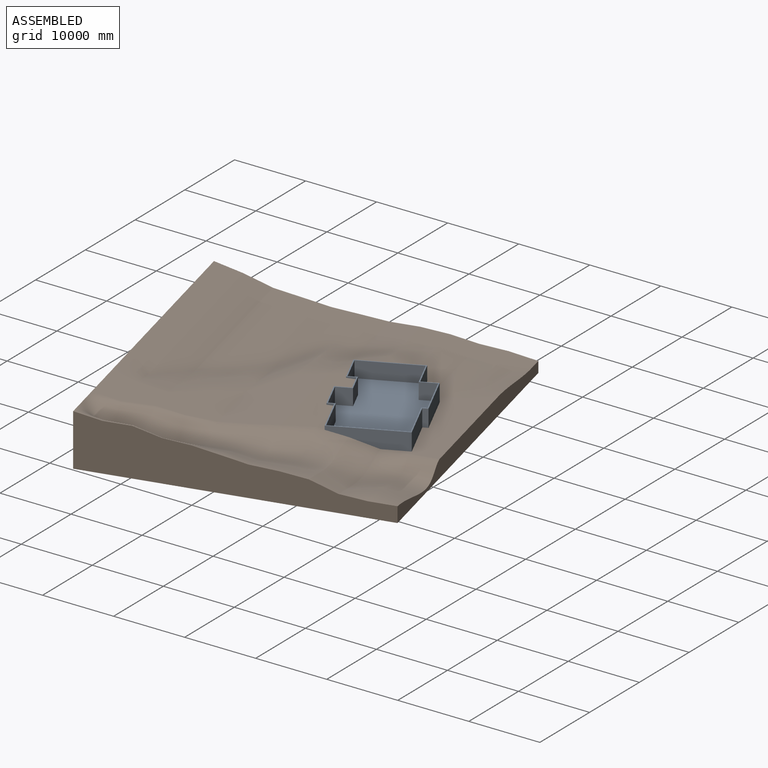
[diagram: assembled view]
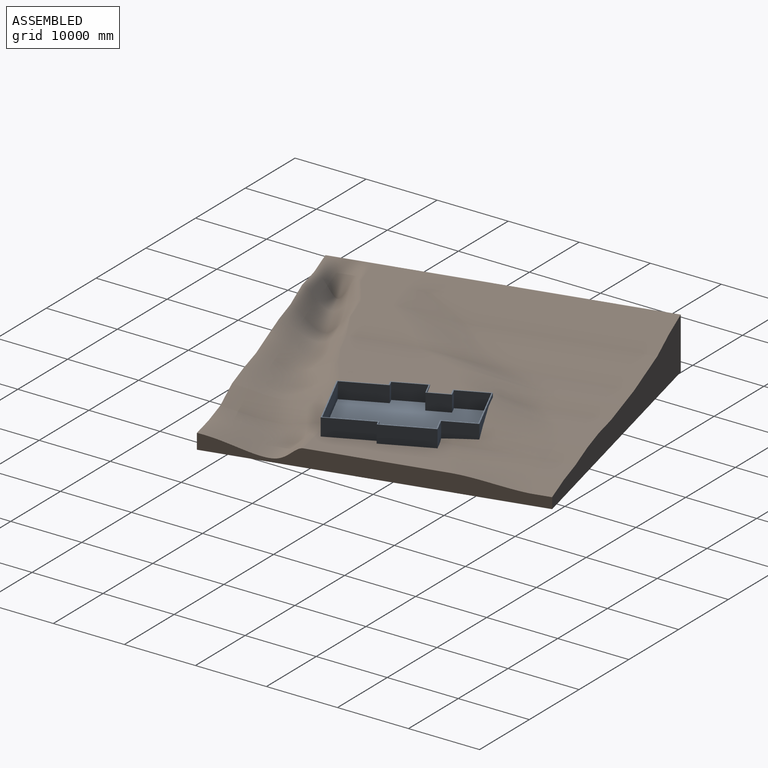
[diagram: assembled view, second angle]
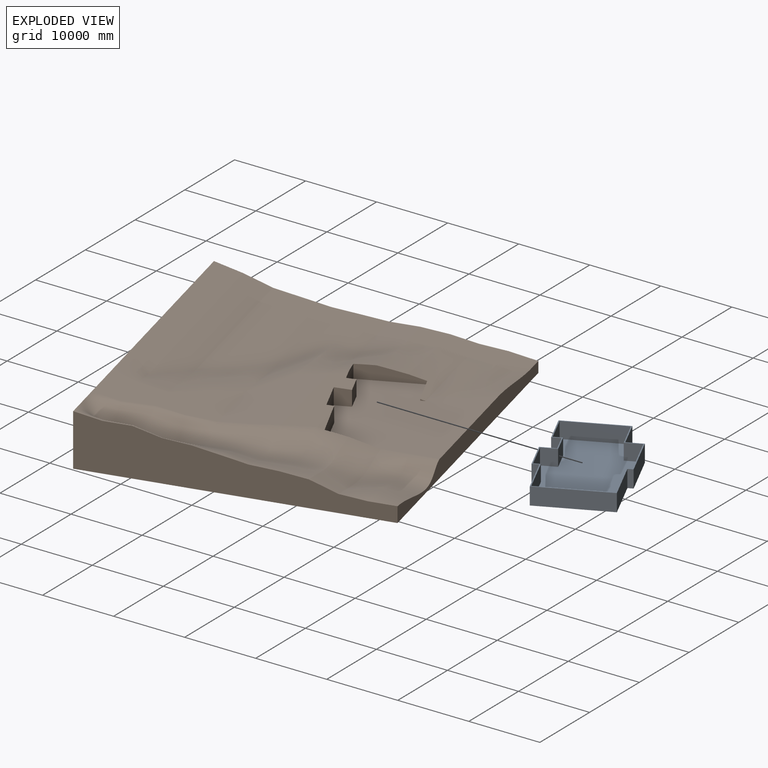
[diagram: exploded view]
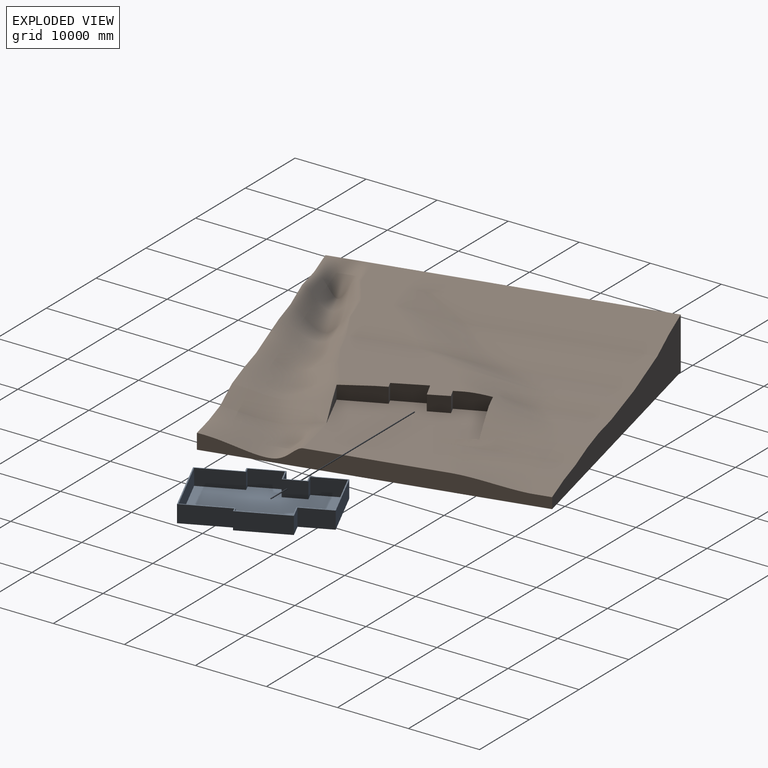
[diagram: exploded view, second angle]
ASSEMBLY  parts=2 mates=3
PART A: 31 faces, bbox 18318.5x11856.7x2438.4 mm
  f0: plane 2286x2133.6mm, normal (-1,0,0), area 4877409.6mm2, adj f1,f27,f28,f30
  f1: plane 3139.44x2286mm, normal (0,-1,0), area 7176759.8mm2, adj f0,f2,f28,f30
  f2: plane 2286x1219.2mm, normal (1,0,0), area 2787091.2mm2, adj f1,f3,f28,f30
  f3: plane 4389.12x2286mm, normal (0,-1,0), area 10033528.3mm2, adj f2,f4,f28,f30
  f4: plane 8351.52x2286mm, normal (-1,0,0), area 19091574.7mm2, adj f3,f5,f28,f30
  f5: plane 4480.56x2286mm, normal (0,1,0), area 10242560.2mm2, adj f4,f6,f28,f30
  f6: plane 2286x2286mm, normal (-1,0,0), area 5225796mm2, adj f5,f7,f28,f30
  f7: plane 6827.52x2286mm, normal (0,1,0), area 15607710.7mm2, adj f6,f8,f28,f30
  f8: plane 2286x731.52mm, normal (1,0,0), area 1672254.7mm2, adj f7,f9,f28,f30
  f9: plane 6705.6x2286mm, normal (0,1,0), area 15329001.6mm2, adj f8,f10,f28,f30
  f10: plane 9906x2286mm, normal (1,0,0), area 22645116mm2, adj f9,f11,f28,f30
  f11: plane 6096x2286mm, normal (0,-1,0), area 13935456mm2, adj f10,f12,f28,f30
  f12: plane 2286x914.4mm, normal (1,0,0), area 2090318.4mm2, adj f11,f27,f28,f30
  f13: plane 6096x2438.4mm, normal (0,1,0), area 14864486.4mm2, adj f14,f26,f28,f29
  f14: plane 10210.8x2438.4mm, normal (-1,0,0), area 24898014.7mm2, adj f13,f15,f28,f29
  f15: plane 6705.6x2438.4mm, normal (0,-1,0), area 16350935mm2, adj f14,f16,f28,f29
  f16: plane 2438.4x731.52mm, normal (-1,0,0), area 1783738.4mm2, adj f15,f17,f28,f29
  f17: plane 7132.32x2438.4mm, normal (0,-1,0), area 17391449.1mm2, adj f16,f18,f28,f29
  f18: plane 2438.4x2286mm, normal (1,0,0), area 5574182.4mm2, adj f17,f19,f28,f29
  f19: plane 4480.56x2438.4mm, normal (0,-1,0), area 10925397.5mm2, adj f18,f20,f28,f29
  f20: plane 8656.32x2438.4mm, normal (1,0,0), area 21107570.7mm2, adj f19,f21,f28,f29
  f21: plane 4693.92x2438.4mm, normal (0,1,0), area 11445654.5mm2, adj f20,f22,f28,f29
  f22: plane 2438.4x1219.2mm, normal (-1,0,0), area 2972897.3mm2, adj f21,f23,f28,f29
  f23: plane 2834.64x2438.4mm, normal (0,1,0), area 6911986.2mm2, adj f22,f24,f28,f29
  f24: plane 2438.4x2133.6mm, normal (1,0,0), area 5202570.2mm2, adj f23,f25,f28,f29
  f25: plane 4693.92x2438.4mm, normal (0,1,0), area 11445654.5mm2, adj f24,f26,f28,f29
  f26: plane 2438.4x914.4mm, normal (-1,0,0), area 2229673mm2, adj f13,f25,f28,f29
  f27: plane 4389.12x2286mm, normal (0,-1,0), area 10033528.3mm2, adj f0,f12,f28,f30
  f28: plane 18318.48x11856.72mm, normal (0,0,1), area 9476110.1mm2, adj f0,f1,f2,f3,f4,f5,f6,f7
  f29: plane 18318.48x11856.72mm, normal (0,0,-1), area 186134956.8mm2, adj f13,f14,f15,f16,f17,f18,f19,f20
  f30: plane 18013.68x11551.92mm, normal (0,0,1), area 176658846.7mm2, adj f0,f1,f2,f3,f4,f5,f6,f7
PART B: 56 faces, bbox 58564.3x59434.1x7482.8 mm
  f0: plane 3969.44x2560.79mm, normal (0.2,-0.14,0.97), area 1912773.6mm2, adj f27,f32,f45
  f1: plane 3402.87x1540.74mm, normal (0.26,-0.18,0.95), area 106472.8mm2, adj f31,f36,f46
  f2: plane 35924.79x25913.82mm, normal (-0.81,0.58,0), area 322321522.9mm2, adj f3,f4,f5,f6,f7,f8,f9
  f3: plane 32650.49x23509.32mm, normal (-0.58,-0.81,0), area 185909931.3mm2, adj f2,f4,f9,f12,f15,f17,f21,f24
  f4: plane 59266.55x58396.76mm, normal (0,0,-1), area 1772768376mm2, adj f2,f3,f5,f41
  f5: plane 32650.49x23509.32mm, normal (0.58,0.81,0), area 155488955.8mm2, adj f2,f4,f6,f10,f13,f18,f22,f25
  f6: plane 25792.36x18219.27mm, normal (0.2,-0.14,0.97), area 104150048.1mm2, adj f2,f5,f7,f10
  f7: bspline ~7497.38x4685.28mm, area 17913430.7mm2, adj f2,f6,f8,f11
  f8: plane 18243.78x11454.62mm, normal (0.13,-0.1,0.99), area 88308193.4mm2, adj f2,f7,f9,f11,f12,f14,f15,f16
  f9: bspline ~11901x9628.81mm, area 28101069.8mm2, adj f2,f3,f8,f12
  f10: plane 23655.15x20000.63mm, normal (0.26,-0.18,0.95), area 101818343.4mm2, adj f5,f6,f11,f13
  f11: bspline ~8248.58x7333.52mm, area 23512915.4mm2, adj f7,f8,f10,f14
  f12: bspline ~7283.08x6922.8mm, area 32710409.3mm2, adj f3,f8,f9,f15
  f13: plane 19766.63x19207.79mm, normal (0.13,-0.1,0.99), area 146618180.5mm2, adj f5,f10,f14,f16,f18
  f14: bspline ~10339.6x8100.39mm, area 34092516mm2, adj f8,f11,f13,f16
  f15: bspline ~8129.82x7283.08mm, area 34424581.7mm2, adj f3,f8,f12,f17
  f16: bspline ~11326.16x9689.64mm, area 39457767.6mm2, adj f8,f13,f14,f19
  f17: bspline ~8129.82x7872.79mm, area 33896560.4mm2, adj f3,f8,f15,f21
  f18: plane 12360.82x11868.38mm, normal (0.07,-0.05,1), area 43311467.9mm2, adj f5,f13,f19,f22
  f19: bspline ~13954.7x13121.15mm, area 44509808.3mm2, adj f16,f18,f20,f23
  f20: plane 15605.97x12927.74mm, normal (0,0,1), area 93416236.5mm2, adj f8,f19,f21,f23,f24,f27
  f21: bspline ~8948.83x8267.66mm, area 34442668.1mm2, adj f3,f17,f20,f24
  f22: plane 8811.47x7695.08mm, normal (0.07,-0.05,1), area 29036980.1mm2, adj f5,f18,f23,f25
  f23: bspline ~10516.29x9817.38mm, area 39236902.8mm2, adj f19,f20,f22,f26
  f24: bspline ~9379.4x8793.18mm, area 35506184.8mm2, adj f3,f20,f21,f28
  f25: plane 8022.39x6792.09mm, normal (0,0,1), area 25990248.3mm2, adj f5,f22,f26,f29
  f26: bspline ~11160.69x9303.51mm, area 35014368.1mm2, adj f23,f25,f27,f30,f49,f50
  f27: plane 13029.23x11575.33mm, normal (0.06,-0.05,1), area 47163611.9mm2, adj f0,f20,f26,f28,f45,f50,f51,f52
  f28: bspline ~10572.21x10111.88mm, area 45043520.2mm2, adj f3,f24,f27,f32
  f29: plane 5947.95x5183.41mm, normal (0.07,-0.05,1), area 16246771mm2, adj f5,f25,f30,f33
  f30: bspline ~10453.39x10303.15mm, area 32917269.1mm2, adj f26,f29,f34,f49
  f31: plane 655.21x344.62mm, normal (0.2,-0.14,0.97), area 20240.6mm2, adj f1,f32,f46
  f32: bspline ~11831.26x10202.9mm, area 45719741.9mm2, adj f0,f3,f28,f31,f36,f45,f46
  f33: plane 5183.41x5161.58mm, normal (0.13,-0.1,0.99), area 13918867.2mm2, adj f5,f29,f34,f37
  f34: bspline ~11395.29x9634.31mm, area 36784946.1mm2, adj f30,f33,f35,f38,f48,f49
  f35: plane 1897.03x1538.63mm, normal (0.26,-0.18,0.95), area 1448487.6mm2, adj f34,f39,f47,f48
  f36: bspline ~12184.95x10658.28mm, area 50313282.9mm2, adj f1,f3,f32,f39,f40,f46
  f37: plane 5183.41x5161.58mm, normal (0.07,-0.05,1), area 13777075.4mm2, adj f5,f33,f38,f42
  f38: bspline ~10744.73x9634.31mm, area 40329793mm2, adj f34,f37,f39,f43
  f39: plane 23662.37x22679.26mm, normal (0,0,1), area 272281259.9mm2, adj f35,f36,f38,f40,f41,f43,f44,f45
  f40: bspline ~12817.4x10671.53mm, area 49610945.4mm2, adj f3,f36,f39,f44
  f41: plane 35766.2x25755.23mm, normal (0.81,-0.58,0), area 84946726.8mm2, adj f3,f4,f5,f39,f42,f43,f44
  f42: plane 5161.58x4146.09mm, normal (0.13,-0.1,0.99), area 11548969.6mm2, adj f5,f37,f41,f43
  f43: bspline ~9912.8x9203.35mm, area 37862411.4mm2, adj f38,f39,f41,f42
  f44: bspline ~12835.8x10658.28mm, area 50567118.3mm2, adj f3,f39,f40,f41
  f45: plane 5544.56x2534.84mm, normal (0.91,-0.42,0), area 12527819.7mm2, adj f0,f27,f32,f39,f46,f55
  f46: plane 5978.36x2738.83mm, normal (0.42,0.91,0), area 6703249.4mm2, adj f1,f31,f32,f36,f39,f45
  f47: plane 584.09x267.01mm, normal (-0.42,-0.91,0), area 67435.3mm2, adj f35,f39,f48
  f48: plane 4077.67x1865.53mm, normal (-0.91,0.42,0), area 1530992.1mm2, adj f34,f35,f39,f47,f49
  f49: plane 7936.16x3662.36mm, normal (-0.42,-0.91,0), area 12685564.5mm2, adj f26,f30,f34,f39,f48,f50
  f50: plane 4308.29x2329.34mm, normal (0.91,-0.42,0), area 10241149.7mm2, adj f26,f27,f39,f49,f51
  f51: plane 2273.02x1108.83mm, normal (0.42,0.91,0), area 2713677.6mm2, adj f27,f39,f50,f52
  f52: plane 2578.04x2178.56mm, normal (0.91,-0.42,0), area 6113852.2mm2, adj f27,f39,f51,f53
  f53: plane 2300.42x1940.46mm, normal (-0.42,-0.91,0), area 4731833.2mm2, adj f27,f39,f52,f54
  f54: plane 4269.01x2300.42mm, normal (0.91,-0.42,0), area 10629182.9mm2, adj f27,f39,f53,f55
  f55: plane 2228.49x831.63mm, normal (0.42,0.91,0), area 2005342.6mm2, adj f27,f39,f45,f54
PLACE A rot(axis=(0,0,1),114.6deg) t=(6727.94,-9668.17,27297.11)mm
PLACE B rot(axis=(0,0,1),49.1deg) t=(-25570.82,-31605.51,27297.11)mm
MATE planar B.f39 <-> A.f29  axis (0,0,1) through (749.96,-2919.72,27297.11)mm
MATE planar B.f49 <-> A.f20  axis (0.42,-0.91,0) through (-6934.8,4227.87,28105.4)mm
MATE planar B.f54 <-> A.f25  axis (0.91,0.42,0) through (-6900.37,-6614.87,29561.56)mm
